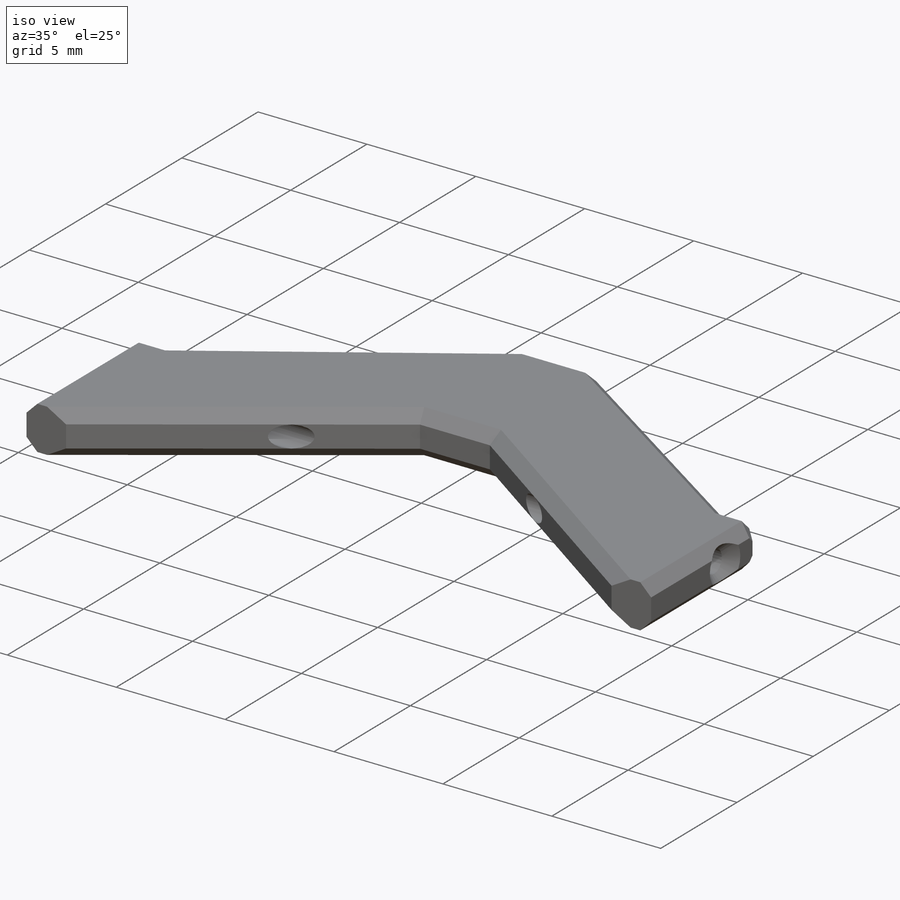
[diagram: iso view]
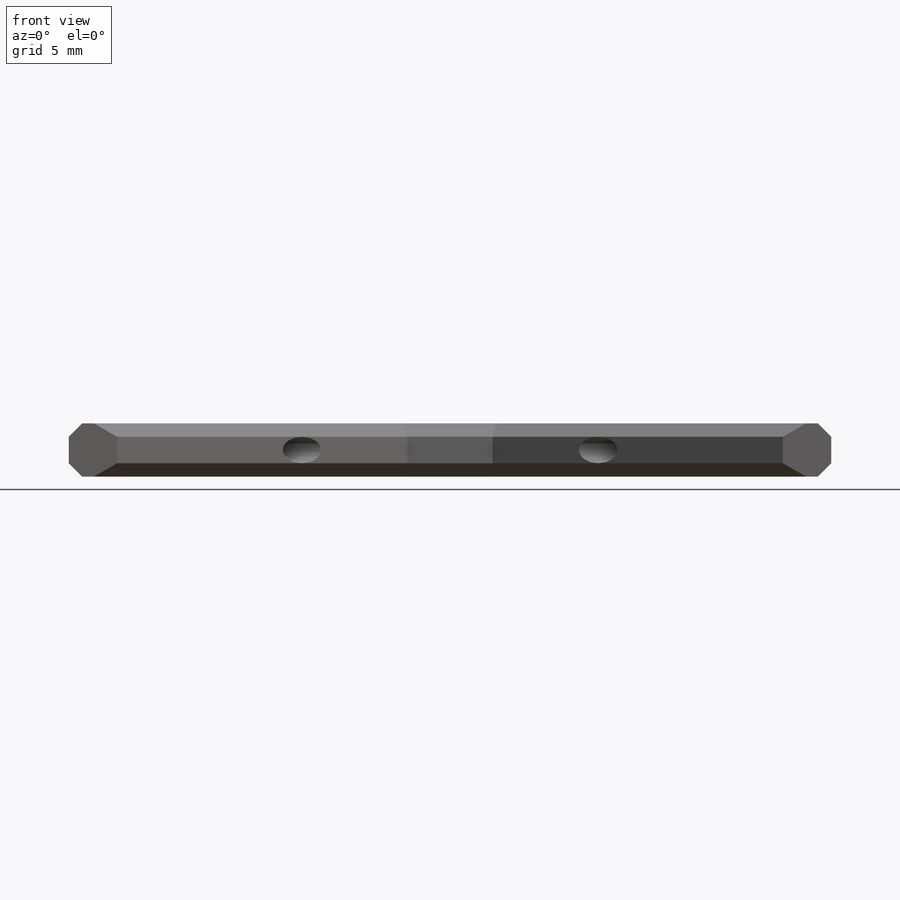
[diagram: front view]
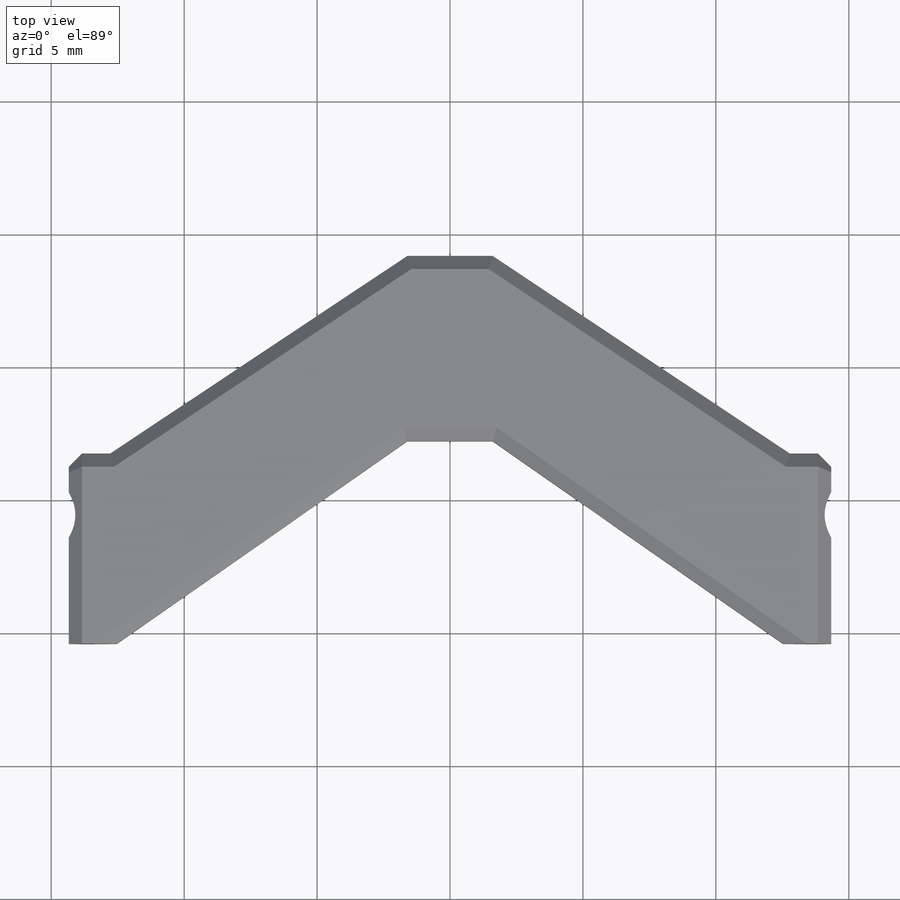
[diagram: top view]
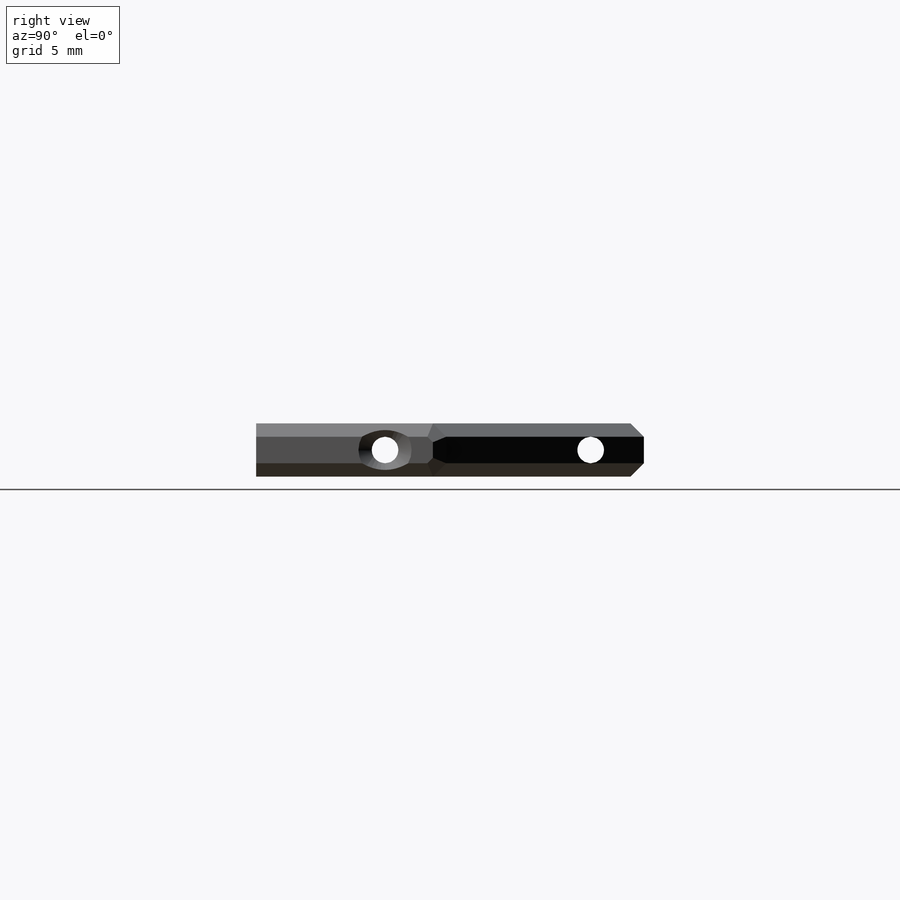
[diagram: right view]
SOLIDWORKS PART (.sldprt)
format: sldprt  version: not decoded by parser v0  size: 2,919,936 bytes
history: native  units: mm
features: sketch x33, cut_extrude x13, extrude x8, chamfer x7, fillet x6, cut_revolve x4, pattern_circular x3, mirror x3, revolve x2, material x1 (+11 scaffold rows collapsed)
feature tree (91):
  scaffold x11  (default folders/planes/origin — collapsed)
  material  "Material <not specified>"
  sketch  "Sketch1"  dims[D1=65.0mm D2=65.0mm]
  extrude  "Boss-Extrude1"  Depth=8mm
  sketch  "Sketch3"  dims[D1=55.0mm]
  cut_extrude  "Cut-Extrude1"  Depth=8mm
  sketch  "Sketch4"  dims[D1=45.0mm]
  cut_extrude  "Cut-Extrude2"  Depth=2mm
  sketch  "Sketch5"  dims[D1=2.0mm]
  cut_revolve  "Cut-Revolve1"  Angle=360deg
  sketch  "Sketch6"
  cut_revolve  "Cut-Revolve2"  Angle=360deg
  fillet  "Fillet1"  Radius=2mm
  chamfer  "Chamfer2"  Distance=1mm Angle=45deg
  sketch  "3DSketch1"  dims[D1=5.0mm]
  sketch  "Sketch7"
  extrude  "Boss-Extrude2"  Depth=3.2mm
  sketch  "Sketch8"  dims[D1=0.2mm]
  cut_revolve  "Cut-Revolve3"  Angle=360deg
  pattern_circular  "CirPattern2"  Count=8 Angle=45deg
  chamfer  "Chamfer4"  Distance=0.1mm Angle=45deg
  chamfer  "Chamfer5"  Distance=1mm Angle=45deg
  sketch  "Sketch9"  dims[D1=~0.87622mm]
  extrude  "Boss-Extrude3"  Depth=2.1mm
  sketch  "Sketch10"  dims[D1=0.1mm D2=0.1mm]
  cut_revolve  "Cut-Revolve4"  Angle=360deg
  pattern_circular  "CirPattern3"  Count=12 Angle=30deg
  sketch  "3DSketch2"  dims[D1=30.0mm]
  sketch  "Sketch11"  dims[D1=7.0mm D2=0.2mm D3=22.0]
  extrude  "Boss-Extrude4"  Depth=3mm
  fillet  "Fillet2"  Radius=0.5mm
  sketch  "Sketch12"  dims[D1=0.7mm]
  revolve  "Revolve1"  Angle=360deg
  sketch  "Sketch13"
  cut_extrude  "Cut-Extrude3"  Depth=1mm
  chamfer  "Chamfer6"  Distance=0.5mm Angle=45deg
  sketch  "Sketch15"  dims[D1=8.0]
  cut_extrude  "Cut-Extrude5"  Depth=1mm
  chamfer  "Chamfer7"  Distance=1mm Angle=45deg
  sketch  "Sketch16"  dims[D1=1.5mm]
  cut_extrude  "Cut-Extrude6"  Depth=1mm
  sketch  "3DSketch3"  dims[D1=10.0mm]
  sketch  "Sketch20"
  extrude  "Boss-Extrude5"  Depth=1mm
  sketch  "3DSketch4"  dims[D1=3.75mm]
  sketch  "Sketch21"
  sketch  "Sketch22"
  extrude  "Boss-Extrude6"  Depth=1mm
  chamfer  "Chamfer8"  Distance=0.5mm Angle=45deg
  sketch  "Sketch23"  dims[D2=1.0mm D1=2.0mm]
  extrude  "Boss-Extrude7"  Depth=8mm
  sketch  "Sketch24"
  cut_extrude  "Cut-Extrude8"  Depth=50mm
  mirror  "Mirror2"
  sketch  "3DSketch5"  dims[D1=10.0mm]
  sketch  "Sketch26"  dims[D1=6.5mm D2=6.0mm]
  cut_extrude  "Cut-Extrude9"  Depth=14mm
  sketch  "Sketch28"  dims[D1=5.5mm]
  extrude  "Boss-Extrude8"  Depth=7mm
  fillet  "Fillet3"  Radius=1mm
  fillet  "Fillet4"  Radius=0.1mm
  pattern_circular  "CirPattern4"  Count=2 Angle=40deg
  mirror  "Mirror3"
  fillet  "Fillet5"  Radius=0.1mm
  fillet  "Fillet6"  Radius=0.1mm
  sketch  "Sketch29"
  revolve  "Revolve2"  Angle=360deg
  sketch  "Sketch30"
  cut_extrude  "Cut-Extrude10"  Depth=0.1mm
  sketch  "Sketch31"  dims[D1=2.0mm]
  cut_extrude  "Cut-Extrude11"  Depth=10mm
  mirror  "Mirror4"
  sketch  "Sketch32"
  cut_extrude  "Cut-Extrude12"  Depth=10mm
  sketch  "Sketch33"  dims[D1=1.5mm]
  cut_extrude  "Cut-Extrude13"  Depth=30mm
  sketch  "Sketch34"
  cut_extrude  "Cut-Extrude14"  Depth=30mm
  chamfer  "Chamfer9"  Distance=0.5mm Angle=45deg
  sketch  "Sketch36"
  cut_extrude  "Cut-Extrude15"  Depth=14mm
decode coverage: 64 of 79 modeling features carry decoded parameters
note: ~ marks probable driven/reference dimensions
note: suppression state not decoded; provenance and decode notes live in map.json
